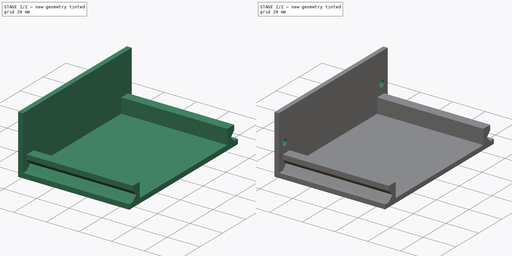
[diagram: build sequence overview — one tinted view per stage of 2, left to right]
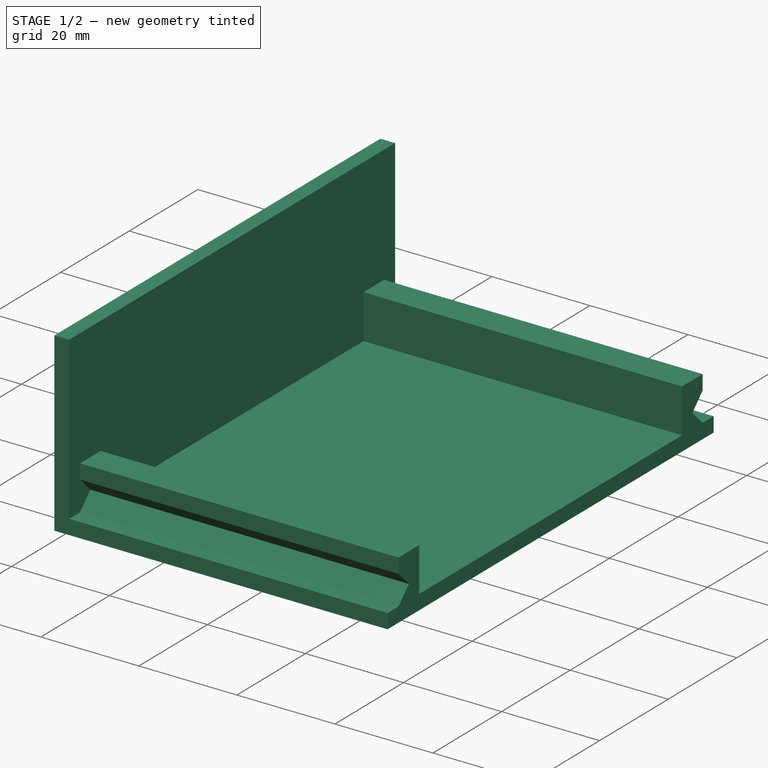
[diagram: stage 1 of 2 — iso view after this stage's code; geometry added in this stage tinted green]
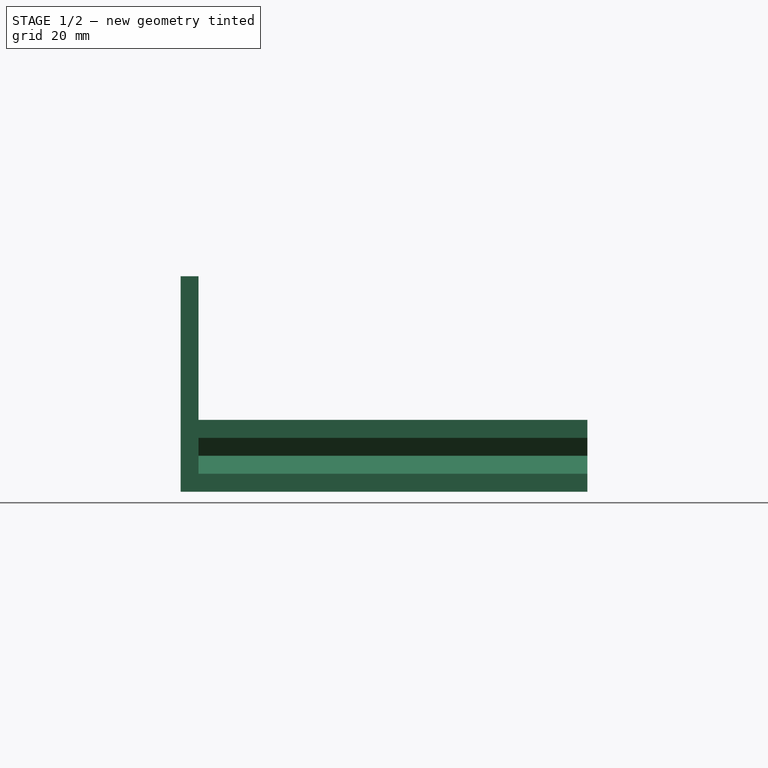
[diagram: stage 1 of 2 — front view after this stage's code; geometry added in this stage tinted green]
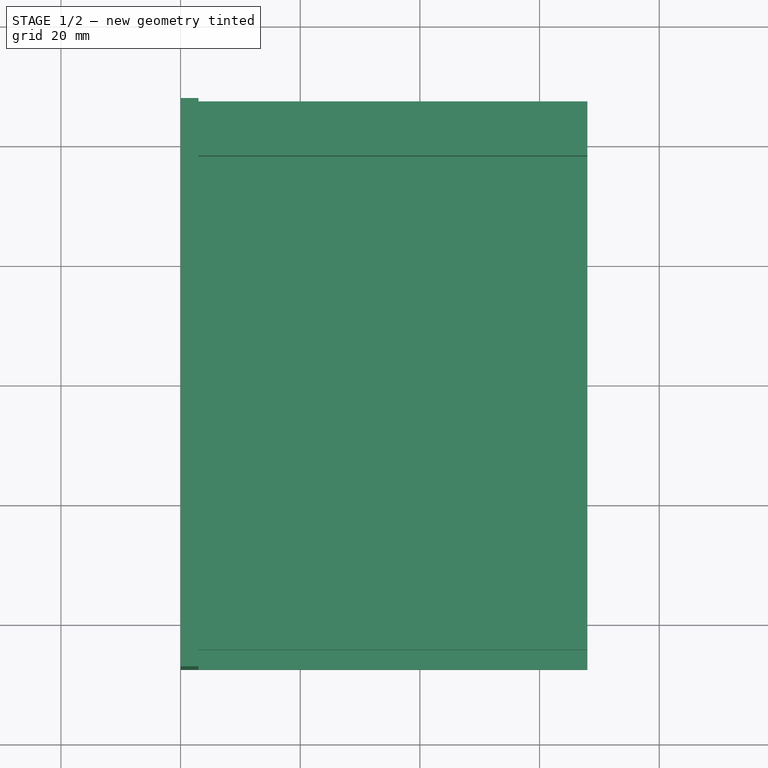
[diagram: stage 1 of 2 — top view after this stage's code; geometry added in this stage tinted green]
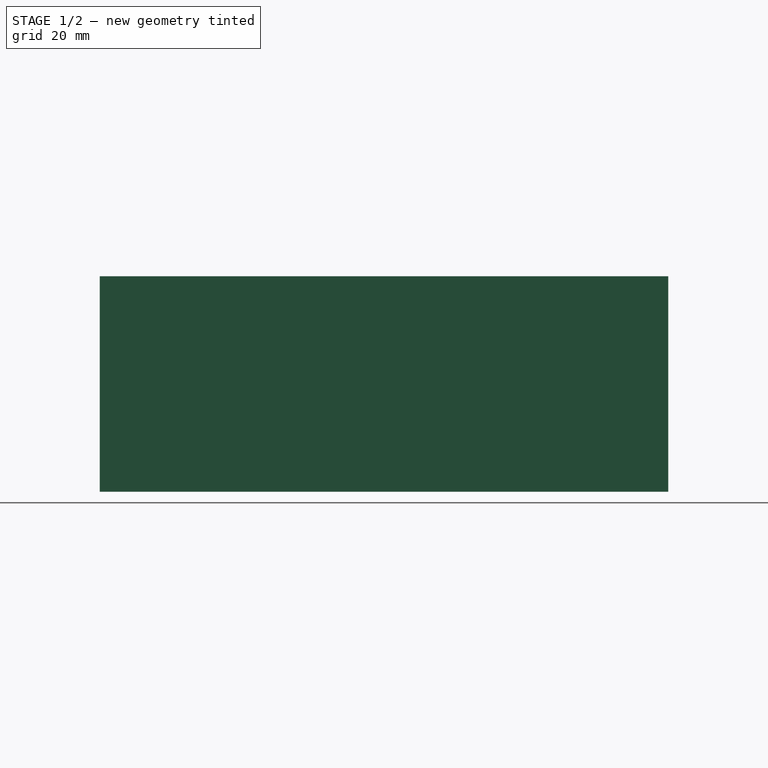
[diagram: stage 1 of 2 — right view after this stage's code; geometry added in this stage tinted green]
FCSTD DOCUMENT  (FreeCAD 1.0R38641 +468 (Git))
Label: Deckel
License: All rights reserved
LicenseURL: https://en.wikipedia.org/wiki/All_rights_reserved
objects: Sketcher::SketchObject×3, PartDesign::Pad×2, PartDesign::Pocket×1, PartDesign::Fillet×1, PartDesign::Body×1
note: 19 computed .brp shape members not serialized (recipe doc carries the construction recipe); baked Part::Feature solids carry a one-line shape summary decoded from their .brp

FEATURE [Sketcher::SketchObject] Sketch
  ArcFitTolerance = 1e-06
  AttachmentSupport = -> [YZ_Plane]
  FullyConstrained = true
  MakeInternals = false
  MapMode = 5
  Placement = pos=(0,0,0) rot=(0.57735,0.57735,0.57735;2.0944rad)
  sketch-geometry (4):
    g0: LineSegment StartX=-47.5 StartY=0 StartZ=0 EndX=47.5 EndY=0 EndZ=0
    g1: LineSegment StartX=47.5 StartY=0 StartZ=0 EndX=47.5 EndY=36 EndZ=0
    g2: LineSegment StartX=47.5 StartY=36 StartZ=0 EndX=-47.5 EndY=36 EndZ=0
    g3: LineSegment StartX=-47.5 StartY=36 StartZ=0 EndX=-47.5 EndY=0 EndZ=0
  constraints (11):
    c: Coincident(g0,g1)
    c: Coincident(g1,g2)
    c: Coincident(g2,g3)
    c: Coincident(g3,g0)
    c: Horizontal(g0)
    c: Horizontal(g2)
    c: Vertical(g1)
    c: Vertical(g3)
    c: Symmetric(g0,g0,g-1)
    c: DistanceX(g0,g0) = 95
    c: DistanceY(g1,g1) = 36
FEATURE [PartDesign::Pad] Pad
  Direction = (1,0,0)
  Length = 3
  Length2 = 10
  Placement = pos=(0,0,0) rot=(1,1,1;2.0944rad)
  Profile = -> Sketch
  ReferenceAxis = -> Sketch [N_Axis]
  Refine = true
  Suppressed = false
  Type = 0
FEATURE [Sketcher::SketchObject] Sketch001
  ArcFitTolerance = 1e-06
  AttachmentSupport = -> [Pad]
  ExternalGeometry = -> [Pad]
  FullyConstrained = true
  MakeInternals = false
  MapMode = 5
  Placement = pos=(3,-7e-16,3e-16) rot=(0.57735,0.57735,0.57735;2.0944rad)
  sketch-geometry (16):
    g0: LineSegment StartX=-47.5 StartY=1.42e-14 StartZ=0 EndX=-47.5 EndY=3 EndZ=0
    g1: LineSegment StartX=-47.5 StartY=3 StartZ=0 EndX=-44.3 EndY=3 EndZ=0
    g2: LineSegment StartX=-44.3 StartY=3 StartZ=0 EndX=-41.3 EndY=6 EndZ=0
    g3: LineSegment StartX=-41.3 StartY=6 StartZ=0 EndX=-44.3 EndY=9 EndZ=0
    g4: LineSegment StartX=-44.3 StartY=9 StartZ=0 EndX=-44.3 EndY=12 EndZ=0
    g5: LineSegment StartX=-44.3 StartY=12 StartZ=0 EndX=-38.3 EndY=12 EndZ=0
    g6: LineSegment StartX=-38.3 StartY=12 StartZ=0 EndX=-38.3 EndY=3 EndZ=0
    g7: LineSegment StartX=-38.3 StartY=3 StartZ=0 EndX=38.3 EndY=3 EndZ=0
    g8: LineSegment StartX=38.3 StartY=3 StartZ=0 EndX=38.3 EndY=12 EndZ=0
    g9: LineSegment StartX=38.3 StartY=12 StartZ=0 EndX=44.3 EndY=12 EndZ=0
    g10: LineSegment StartX=44.3 StartY=12 StartZ=0 EndX=44.3 EndY=9 EndZ=0
    g11: LineSegment StartX=44.3 StartY=9 StartZ=0 EndX=41.3 EndY=6 EndZ=0
    g12: LineSegment StartX=41.3 StartY=6 StartZ=0 EndX=44.3 EndY=3 EndZ=0
    g13: LineSegment StartX=44.3 StartY=3 StartZ=0 EndX=47.5 EndY=3 EndZ=0
    g14: LineSegment StartX=47.5 StartY=3 StartZ=0 EndX=47.5 EndY=-1.42e-14 EndZ=0
    g15: LineSegment StartX=47.5 StartY=-1.42e-14 StartZ=0 EndX=-47.5 EndY=1.42e-14 EndZ=0
  constraints (40):
    c: Coincident(g-3,g0)
    c: PointOnObject(g0,g-3)
    c: Coincident(g0,g1)
    c: Horizontal(g1)
    c: Coincident(g1,g2)
    c: Coincident(g2,g3)
    c: Coincident(g3,g4)
    c: Vertical(g4)
    c: Coincident(g4,g5)
    c: Horizontal(g5)
    c: Coincident(g5,g6)
    c: Vertical(g6)
    c: Coincident(g6,g7)
    c: Coincident(g7,g8)
    c: Coincident(g8,g9)
    c: Horizontal(g9)
    c: Coincident(g9,g10)
    c: Vertical(g10)
    c: Coincident(g10,g11)
    c: Coincident(g11,g12)
    c: Coincident(g12,g13)
    c: Coincident(g13,g14)
    c: Coincident(g14,g15)
    c: Coincident(g15,g0)
    c: Symmetric(g0,g14,g-1)
    c: Symmetric(g0,g13,g-2)
    c: Symmetric(g12,g1,g-2)
    c: Symmetric(g6,g7,g-2)
    c: Vertical(g10,g12)
    c: Symmetric(g3,g10,g-2)
    c: Angle(g2) = 0.785398
    c: DistanceX(g13,g13) = 3.2
    c: Horizontal(g1,g6)
    c: DistanceY(g0,g0) = 3
    c: Angle(g3) = 2.35619
    c: Symmetric(g2,g11,g-2)
    c: DistanceY(g4,g4) = 3
    c: DistanceX(g2,g5) = 3
    c: DistanceY(g12,g10) = 6
    c: Symmetric(g8,g5,g-2)
FEATURE [PartDesign::Pad] Pad001
  BaseFeature = -> Pad
  Direction = (1,0,0)
  Length = 65
  Length2 = 10
  Placement = pos=(0,0,0) rot=(1,1,1;2.0944rad)
  Profile = -> Sketch001
  ReferenceAxis = -> Sketch001 [N_Axis]
  Refine = true
  Suppressed = false
  Type = 0
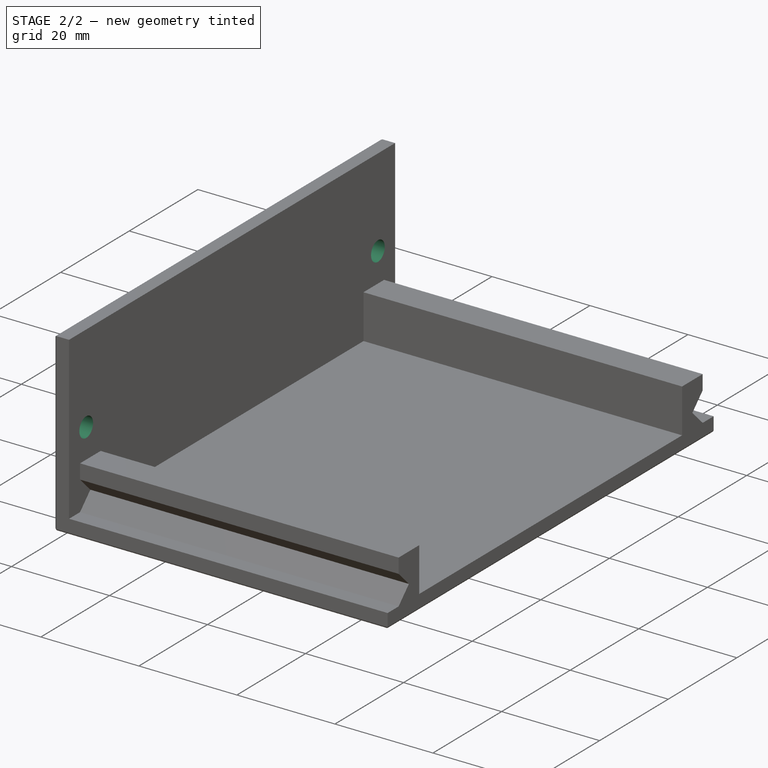
[diagram: stage 2 of 2 — iso view after this stage's code; geometry added in this stage tinted green]
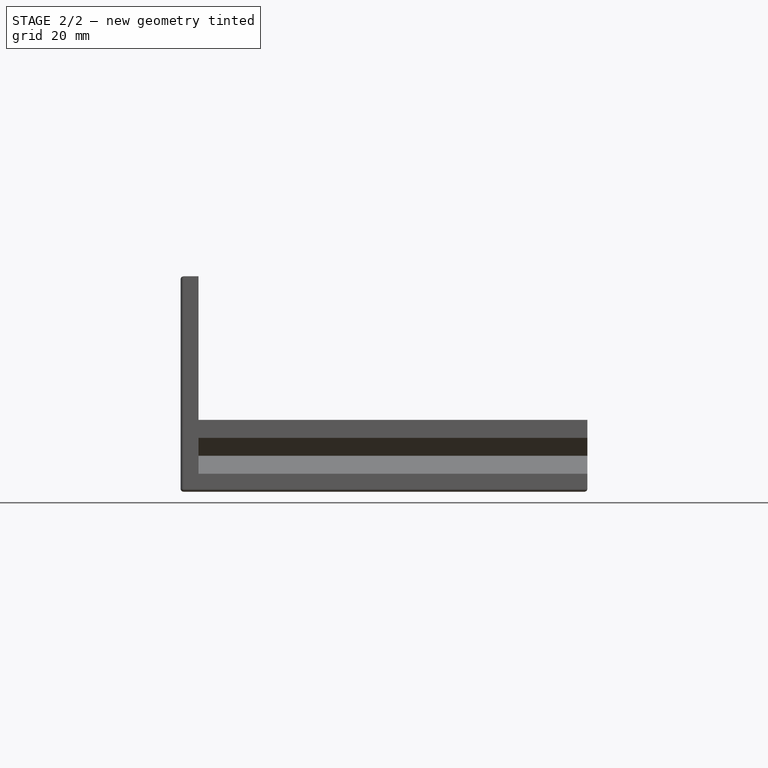
[diagram: stage 2 of 2 — front view after this stage's code; geometry added in this stage tinted green]
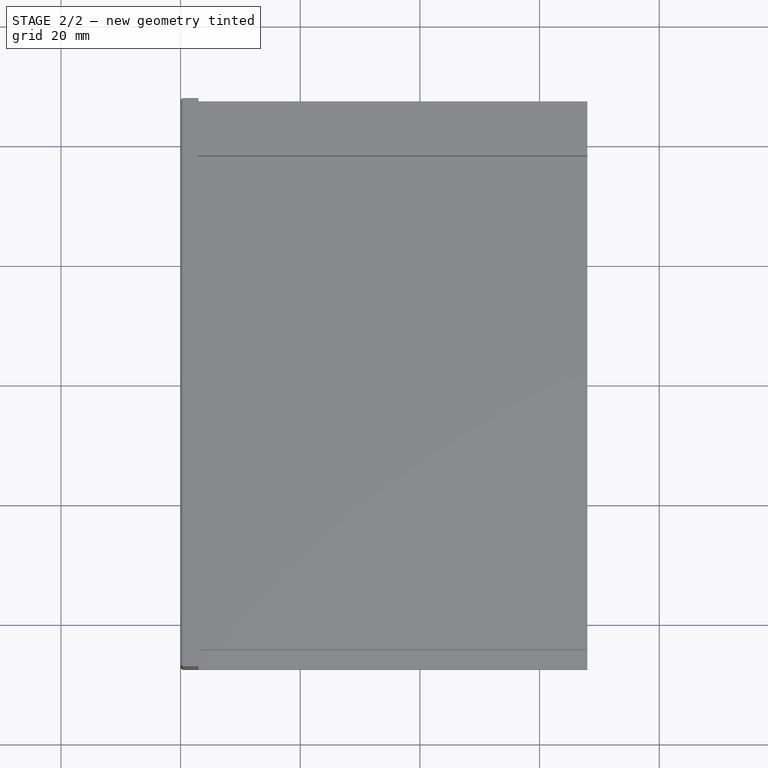
[diagram: stage 2 of 2 — top view after this stage's code; geometry added in this stage tinted green]
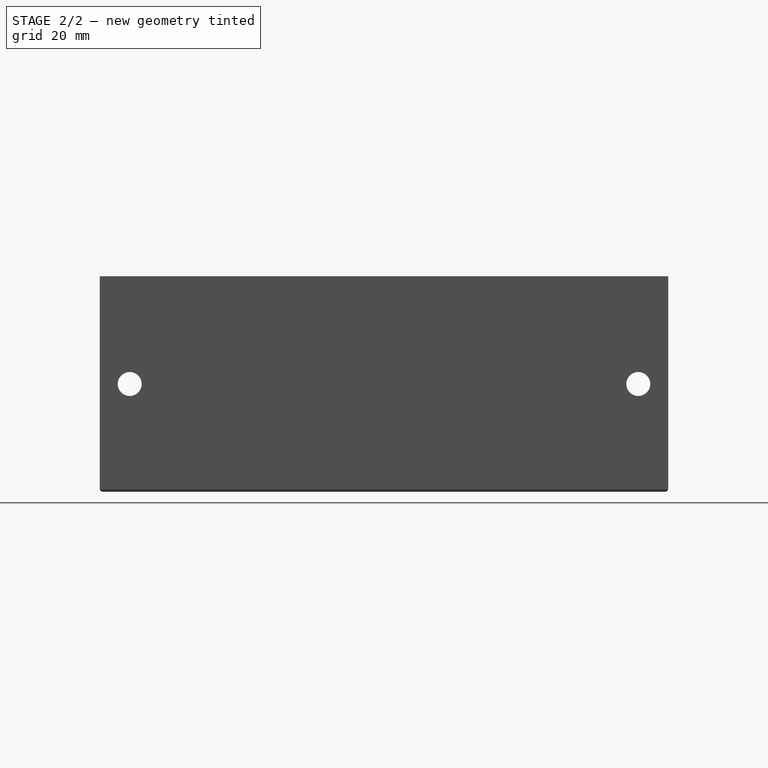
[diagram: stage 2 of 2 — right view after this stage's code; geometry added in this stage tinted green]
FEATURE [Sketcher::SketchObject] Sketch002
  ArcFitTolerance = 1e-06
  AttachmentSupport = -> [Pad001]
  ExternalGeometry = -> [Pad001]
  FullyConstrained = true
  MakeInternals = false
  MapMode = 5
  Placement = pos=(-8e-15,0,0) rot=(0.57735,0.57735,-0.57735;4.18879rad)
  sketch-geometry (3):
    g0: GeomPoint [constr] X=-47.5 Y=-18 Z=0
    g1: Circle CenterX=-42.5 CenterY=-18 CenterZ=0 NormalX=0 NormalY=0 NormalZ=1 AngleXU=0 Radius=2
    g2: Circle CenterX=42.5 CenterY=-18 CenterZ=0 NormalX=0 NormalY=0 NormalZ=1 AngleXU=0 Radius=2
  constraints (6):
    c: Symmetric(g-3,g-3,g0)
    c: Symmetric(g1,g2,g-2)
    c: Diameter(g1) = 4
    c: Equal(g2,g1)
    c: Horizontal(g0,g1)
    c: DistanceX(g-3,g1) = 5
FEATURE [PartDesign::Pocket] Pocket
  BaseFeature = -> Pad001
  Direction = (1,0,0)
  Length = 5
  Length2 = 5
  Placement = pos=(0,0,0) rot=(1,1,1;2.0944rad)
  Profile = -> Sketch002
  ReferenceAxis = -> Sketch002 [N_Axis]
  Refine = true
  Suppressed = false
  Type = 1
FEATURE [PartDesign::Fillet] Fillet
  Base = -> Pocket [Face2,Face1]
  BaseFeature = -> Pocket
  Placement = pos=(0,0,0) rot=(1,1,1;2.0944rad)
  Radius = 0.5
  Refine = true
  SupportTransform = false
  Suppressed = false
  UseAllEdges = false
FEATURE [PartDesign::Body] Body
  AllowCompound = false
  Group = -> [Sketch,Pad,Sketch001,Pad001,Sketch002,Pocket,Fillet]
  Origin = -> Origin
  Tip = -> Fillet
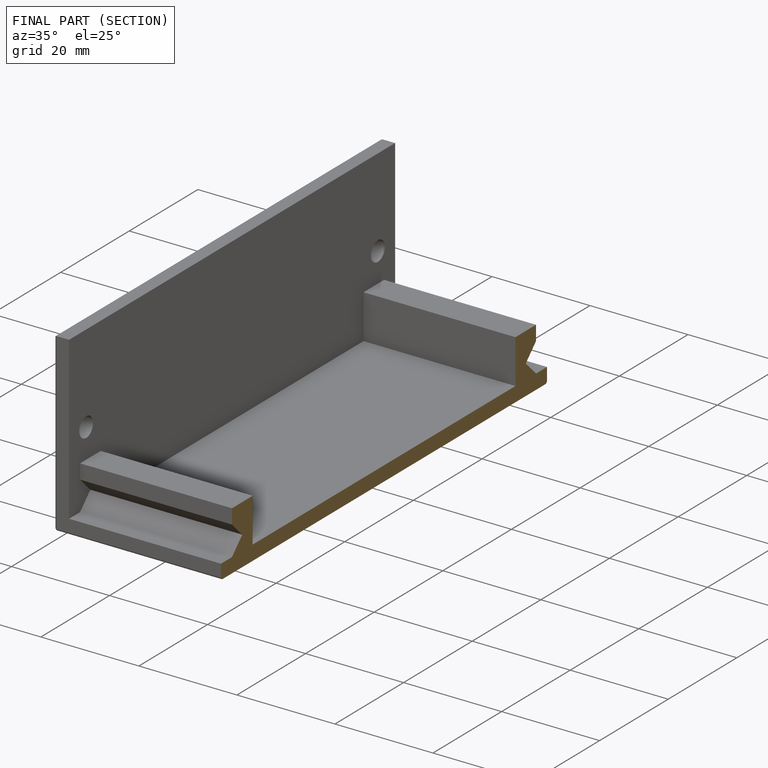
[diagram: finished part — half-section view (interior)]
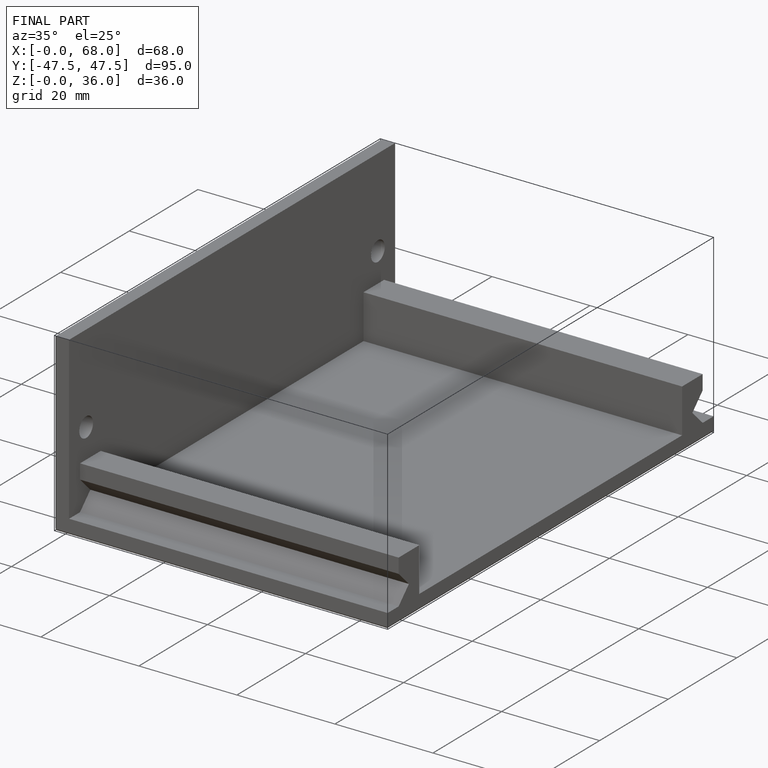
[diagram: finished part — iso view with bounding-box wireframe]
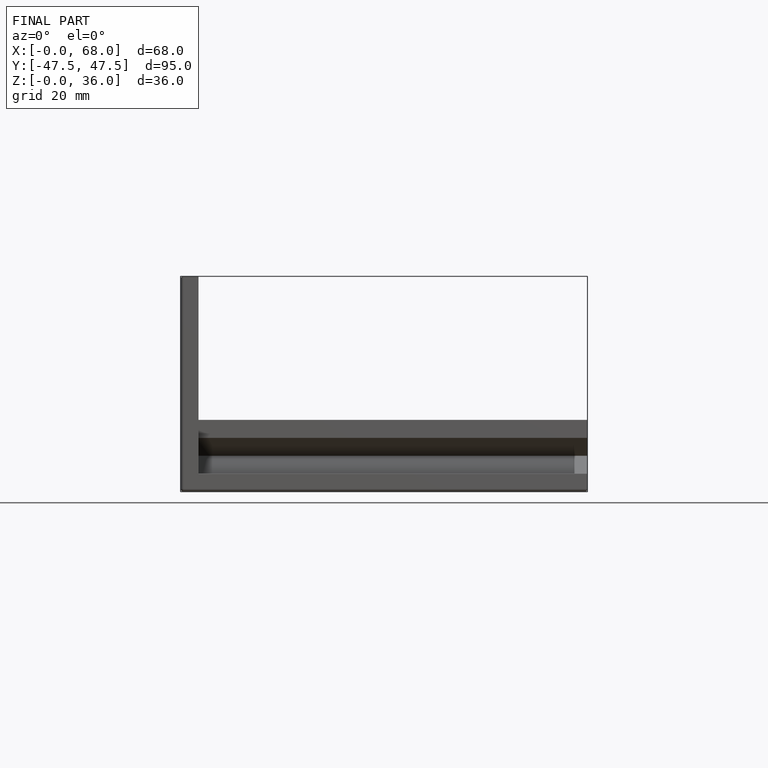
[diagram: finished part — front view with bounding-box wireframe]
